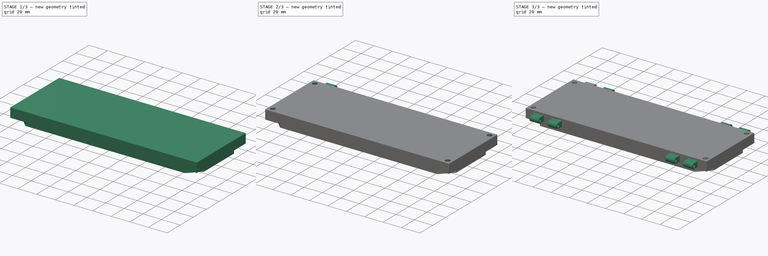
[diagram: build sequence overview — one tinted view per stage of 3, left to right]
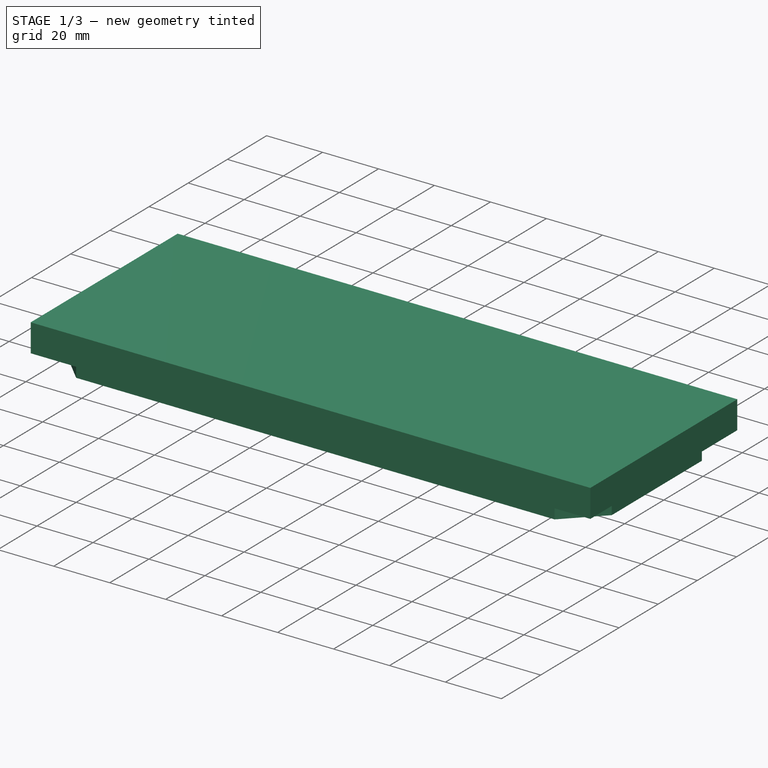
[diagram: stage 1 of 3 — iso view after this stage's code; geometry added in this stage tinted green]
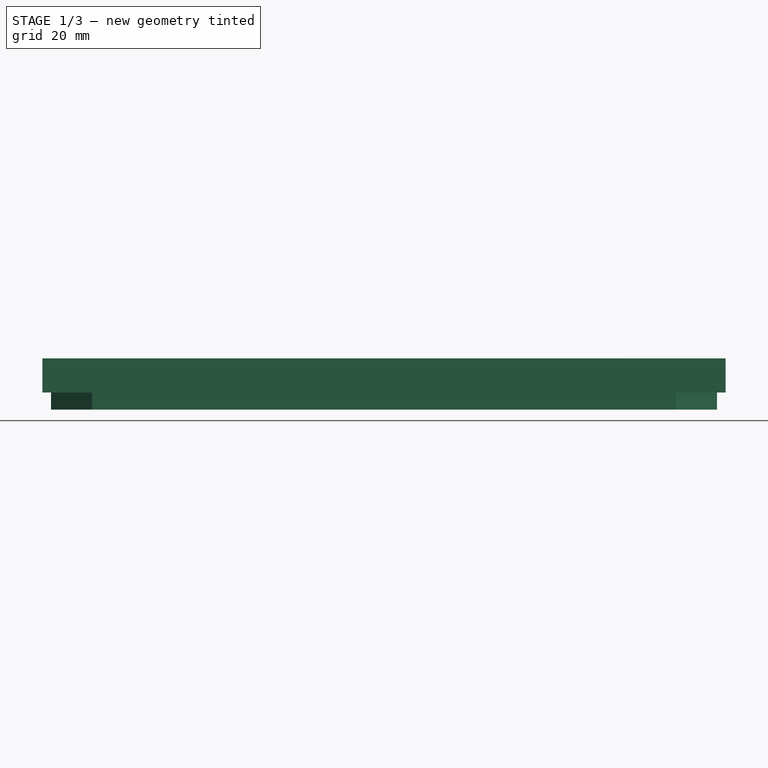
[diagram: stage 1 of 3 — front view after this stage's code; geometry added in this stage tinted green]
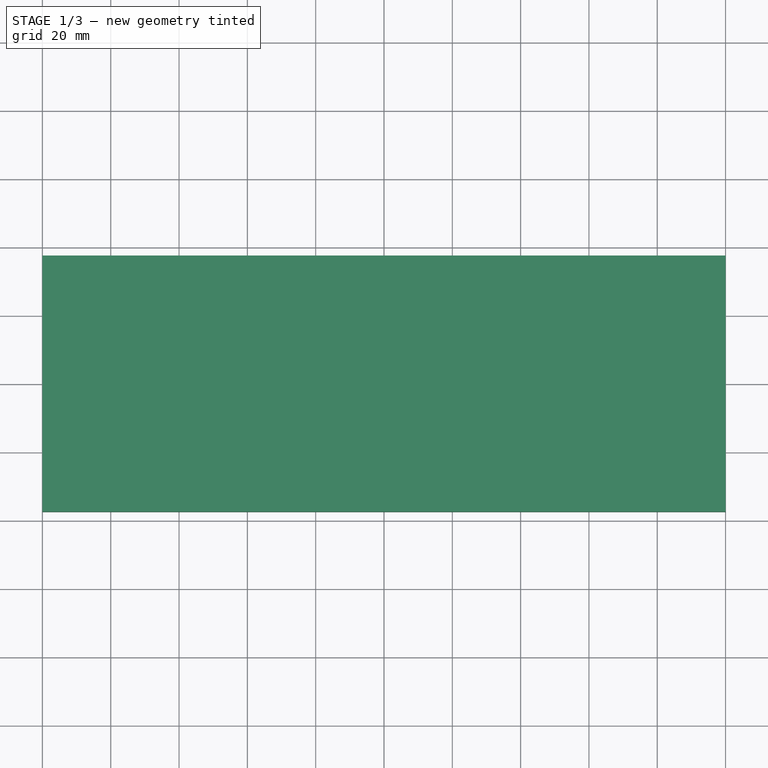
[diagram: stage 1 of 3 — top view after this stage's code; geometry added in this stage tinted green]
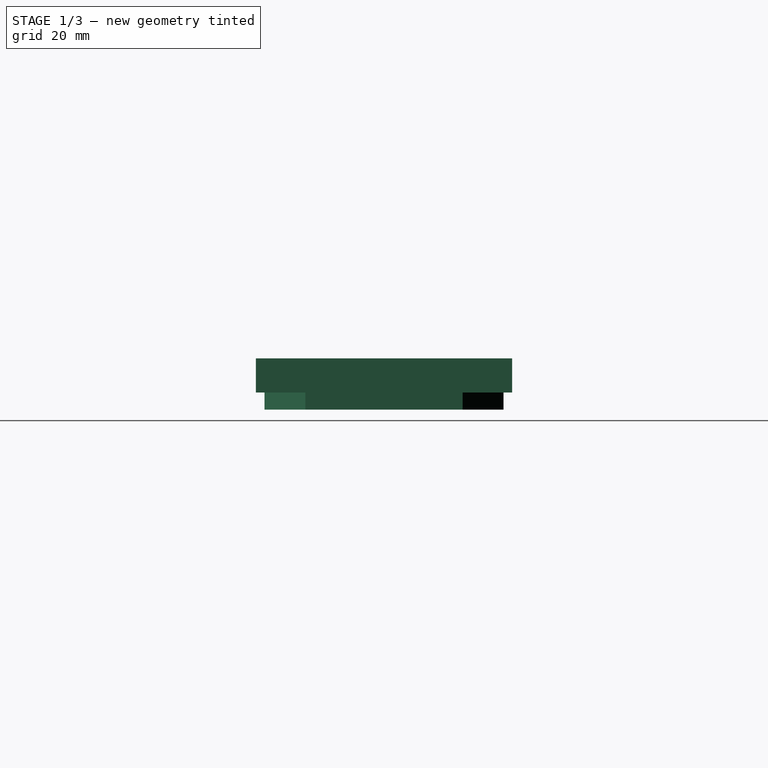
[diagram: stage 1 of 3 — right view after this stage's code; geometry added in this stage tinted green]
FCSTD DOCUMENT  (FreeCAD 1.0R39109 (Git))
Label: gahaeuse-oben
License: All rights reserved
LicenseURL: http://en.wikipedia.org/wiki/All_rights_reserved
objects: Sketcher::SketchObject×5, PartDesign::Mirrored×5, PartDesign::Plane×4, PartDesign::Pad×3, PartDesign::Pocket×2, PartDesign::MultiTransform×2, PartDesign::Body×1
note: 44 computed .brp shape members not serialized (recipe doc carries the construction recipe); baked Part::Feature solids carry a one-line shape summary decoded from their .brp

FEATURE [PartDesign::Plane] DatumPlane
  AttachmentSupport = -> [XY_Plane]
  Length = 227.123
  MapMode = 5
  ResizeMode = 0
  Width = 119.079
FEATURE [Sketcher::SketchObject] Sketch
  ArcFitTolerance = 0
  AttachmentSupport = -> [DatumPlane]
  FullyConstrained = true
  MakeInternals = false
  MapMode = 5
  sketch-geometry (4):
    g0: LineSegment StartX=-100 StartY=-37.5 StartZ=0 EndX=100 EndY=-37.5 EndZ=0
    g1: LineSegment StartX=100 StartY=-37.5 StartZ=0 EndX=100 EndY=37.5 EndZ=0
    g2: LineSegment StartX=100 StartY=37.5 StartZ=0 EndX=-100 EndY=37.5 EndZ=0
    g3: LineSegment StartX=-100 StartY=37.5 StartZ=0 EndX=-100 EndY=-37.5 EndZ=0
  constraints (10):
    c: Coincident(g0,g1)
    c: Coincident(g1,g2)
    c: Coincident(g2,g3)
    c: Coincident(g3,g0)
    c: Horizontal(g0)
    c: Vertical(g3)
    c: Symmetric(g2,g1,g-2)
    c: Symmetric(g1,g0,g-1)
    c: DistanceX(g2,g2) = 200
    c: DistanceY(g1,g1) = 75
FEATURE [PartDesign::Pad] Pad
  Direction = (0,0,1)
  Length = 10
  Length2 = 100
  Profile = -> Sketch
  Suppressed = false
  Type = 0
FEATURE [Sketcher::SketchObject] Sketch001
  ArcFitTolerance = 0
  AttachmentSupport = -> [DatumPlane]
  FullyConstrained = true
  MakeInternals = false
  MapMode = 5
  sketch-geometry (8):
    g0: LineSegment StartX=-97.5 StartY=-23 StartZ=0 EndX=-97.5 EndY=23 EndZ=0
    g1: LineSegment StartX=-97.5 StartY=23 StartZ=0 EndX=-85.5 EndY=35 EndZ=0
    g2: LineSegment StartX=-85.5 StartY=35 StartZ=0 EndX=85.5 EndY=35 EndZ=0
    g3: LineSegment StartX=85.5 StartY=35 StartZ=0 EndX=97.5 EndY=23 EndZ=0
    g4: LineSegment StartX=97.5 StartY=23 StartZ=0 EndX=97.5 EndY=-23 EndZ=0
    g5: LineSegment StartX=97.5 StartY=-23 StartZ=0 EndX=85.5 EndY=-35 EndZ=0
    g6: LineSegment StartX=85.5 StartY=-35 StartZ=0 EndX=-85.5 EndY=-35 EndZ=0
    g7: LineSegment StartX=-85.5 StartY=-35 StartZ=0 EndX=-97.5 EndY=-23 EndZ=0
  constraints (19):
    c: Coincident(g0,g1)
    c: Coincident(g1,g2)
    c: Coincident(g2,g3)
    c: Coincident(g3,g4)
    c: Coincident(g4,g5)
    c: Coincident(g5,g6)
    c: Coincident(g6,g7)
    c: Coincident(g7,g0)
    c: Symmetric(g1,g2,g-2)
    c: Symmetric(g2,g5,g-1)
    c: DistanceX(g0,g3) = 195
    c: DistanceY(g5,g2) = 70
    c: DistanceX(g2,g3) = 12
    c: DistanceX(g0,g1) = 12
    c: DistanceY(g0,g1) = 12
    c: DistanceY(g3,g2) = 12
    c: Symmetric(g1,g6,g-1)
    c: Symmetric(g0,g0,g-1)
    c: Symmetric(g3,g4,g-1)
FEATURE [PartDesign::Pad] Pad001
  BaseFeature = -> Pad
  Direction = (0,0,1)
  Length = 5
  Length2 = 100
  Profile = -> Sketch001
  Reversed = true
  Suppressed = false
  Type = 0
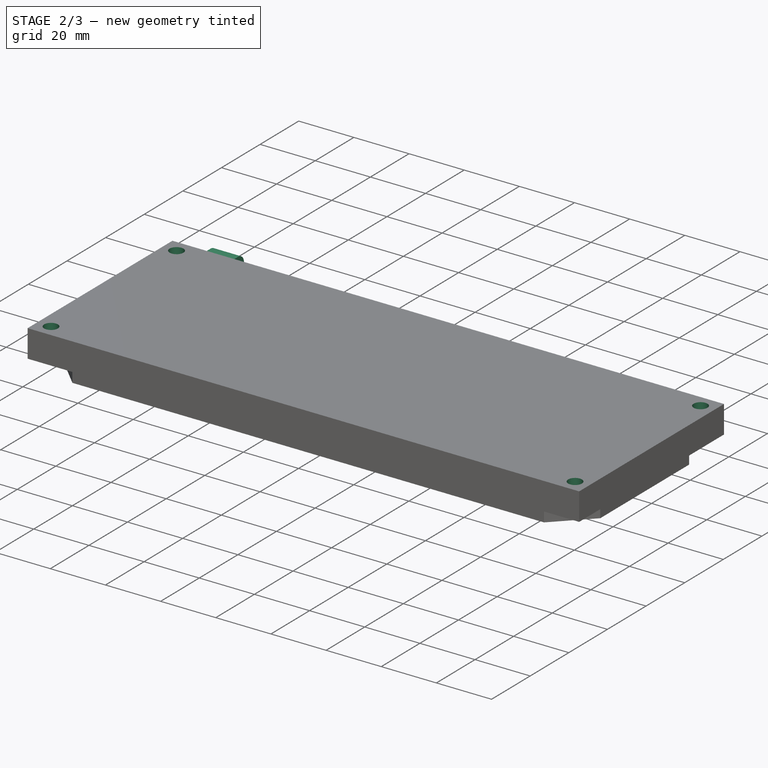
[diagram: stage 2 of 3 — iso view after this stage's code; geometry added in this stage tinted green]
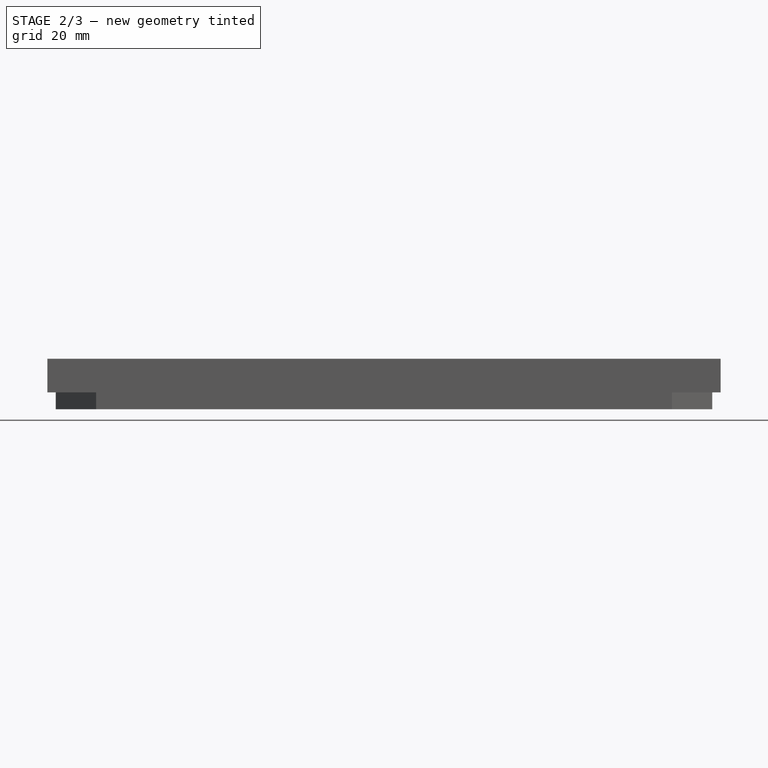
[diagram: stage 2 of 3 — front view after this stage's code; geometry added in this stage tinted green]
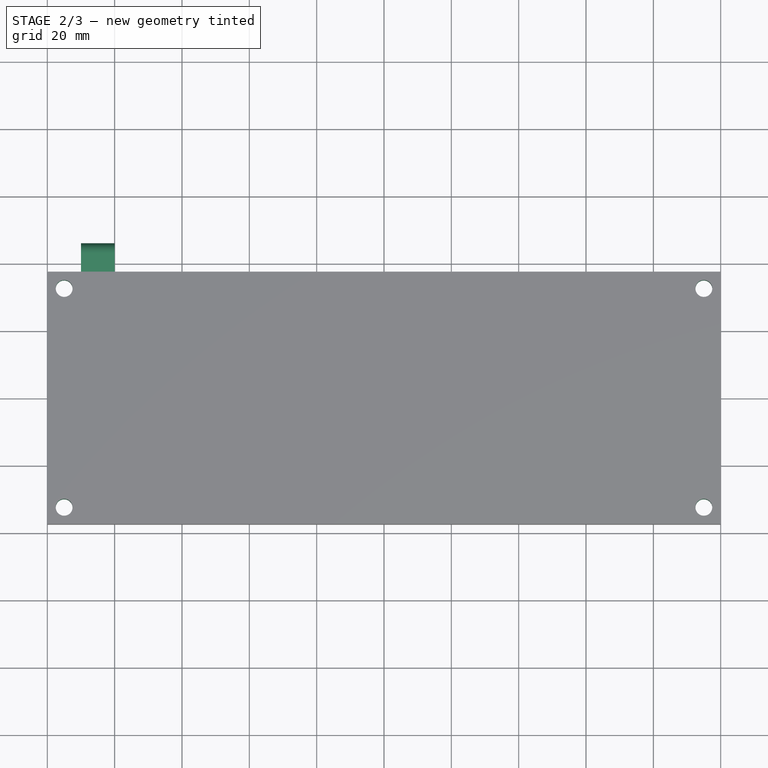
[diagram: stage 2 of 3 — top view after this stage's code; geometry added in this stage tinted green]
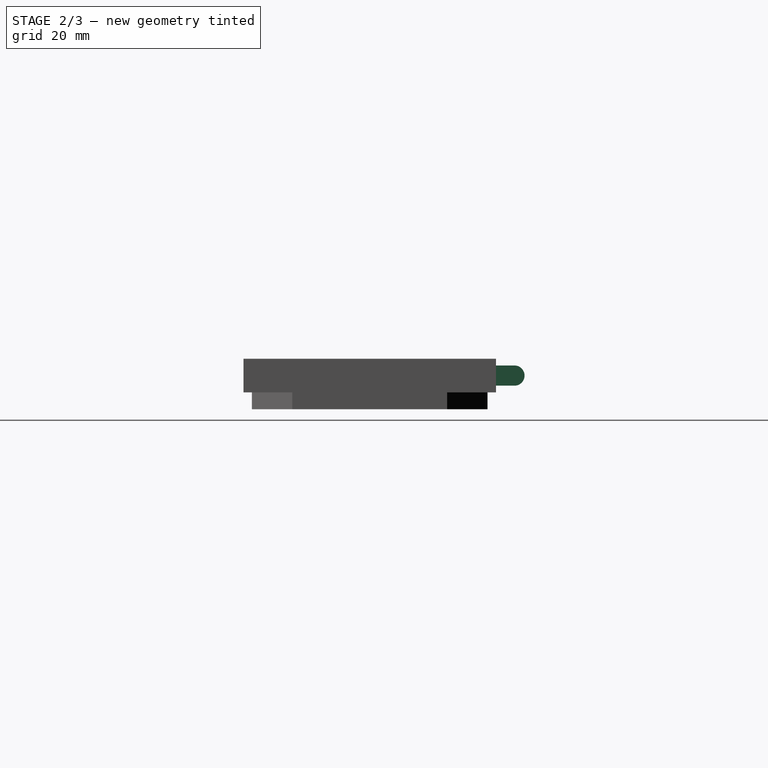
[diagram: stage 2 of 3 — right view after this stage's code; geometry added in this stage tinted green]
FEATURE [PartDesign::Plane] DatumPlane001
  AttachmentSupport = -> [XY_Plane]
  Length = 227.123
  MapMode = 5
  ResizeMode = 0
  Width = 119.079
FEATURE [Sketcher::SketchObject] Sketch002
  ArcFitTolerance = 0
  AttachmentSupport = -> [DatumPlane]
  FullyConstrained = true
  MakeInternals = false
  MapMode = 5
  sketch-geometry (1):
    g0: Circle CenterX=-95 CenterY=32.5 CenterZ=0 NormalX=0 NormalY=0 NormalZ=1 AngleXU=0 Radius=2.5
  constraints (3):
    c: DistanceY(g-1,g0) = 32.5
    c: DistanceX(g0,g-1) = 95
    c: Radius(g0) = 2.5
FEATURE [PartDesign::Pocket] Pocket
  BaseFeature = -> Pad001
  Direction = (0,0,-1)
  Length = 5
  Length2 = 100
  Profile = -> Sketch002
  Reversed = true
  Suppressed = false
  Type = 1
FEATURE [PartDesign::Mirrored] Mirrored
  MirrorPlane = -> YZ_Plane
  Suppressed = false
  TransformMode = 0
FEATURE [PartDesign::Mirrored] Mirrored001
  MirrorPlane = -> XZ_Plane
  Suppressed = false
  TransformMode = 0
FEATURE [PartDesign::MultiTransform] MultiTransform
  BaseFeature = -> Pocket
  Originals = -> [Pocket]
  Suppressed = false
  TransformMode = 0
  Transformations = -> [Mirrored,Mirrored001]
FEATURE [PartDesign::Plane] DatumPlane002
  AttachmentOffset = pos=(0,0,-75) rot=(0,0,1;0rad)
  AttachmentSupport = -> [YZ_Plane]
  Length = 105.518
  MapMode = 5
  Placement = pos=(-75,0,0) rot=(0.57735,0.57735,0.57735;2.0944rad)
  ResizeMode = 0
  Width = 63.5614
FEATURE [PartDesign::Plane] DatumPlane003
  AttachmentOffset = pos=(0,0,-80) rot=(0,0,1;0rad)
  AttachmentSupport = -> [YZ_Plane]
  Length = 105.518
  MapMode = 5
  Placement = pos=(-80,0,0) rot=(0.57735,0.57735,0.57735;2.0944rad)
  ResizeMode = 0
  Width = 63.5614
FEATURE [Sketcher::SketchObject] Sketch003
  ArcFitTolerance = 0
  AttachmentSupport = -> [DatumPlane003]
  FullyConstrained = true
  MakeInternals = false
  MapMode = 5
  Placement = pos=(-80,0,0) rot=(0.57735,0.57735,0.57735;2.0944rad)
  sketch-geometry (4):
    g0: LineSegment StartX=43 StartY=2 StartZ=0 EndX=37.5 EndY=2 EndZ=0
    g1: LineSegment StartX=37.5 StartY=2 StartZ=0 EndX=37.5 EndY=8 EndZ=0
    g2: LineSegment StartX=37.5 StartY=8 StartZ=0 EndX=43 EndY=8 EndZ=0
    g3: ArcOfCircle CenterX=43 CenterY=5 CenterZ=0 NormalX=0 NormalY=0 NormalZ=1 AngleXU=0 Radius=3 StartAngle=4.71239 EndAngle=7.85398
  constraints (11):
    c: Horizontal(g0)
    c: Coincident(g0,g1)
    c: Vertical(g1)
    c: Coincident(g1,g2)
    c: Horizontal(g2)
    c: Tangent(g3,g2) = 1.5708
    c: Tangent(g3,g0) = 1.5708
    c: Radius(g3) = 3
    c: DistanceY(g-1,g3) = 5
    c: DistanceX(g-1,g3) = 43
    c: DistanceX(g-1,g1) = 37.5
FEATURE [PartDesign::Pad] Pad002
  BaseFeature = -> MultiTransform
  Direction = (1,0,0)
  Length = 10
  Length2 = 100
  Profile = -> Sketch003
  Reversed = true
  Suppressed = false
  Type = 0
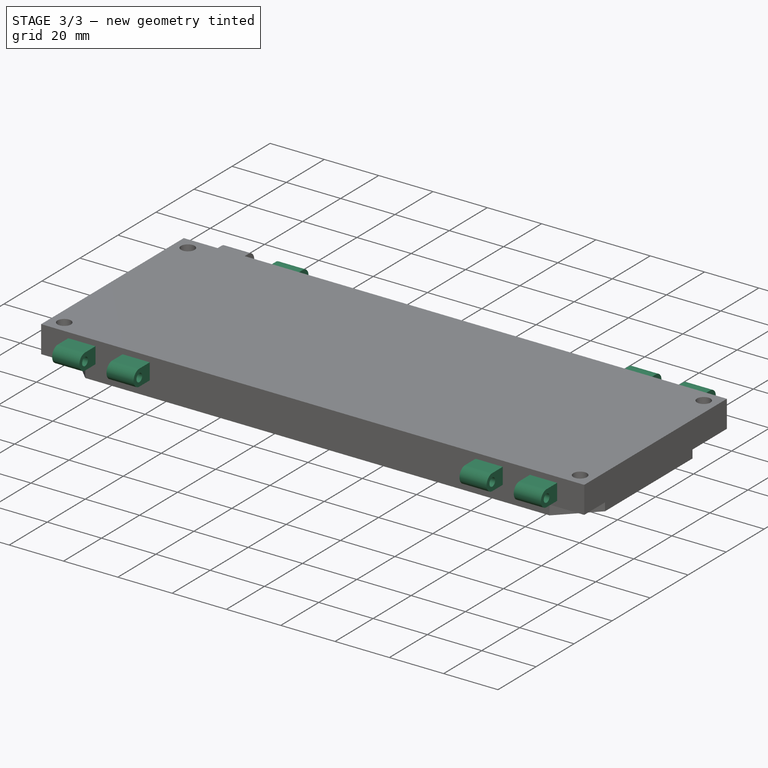
[diagram: stage 3 of 3 — iso view after this stage's code; geometry added in this stage tinted green]
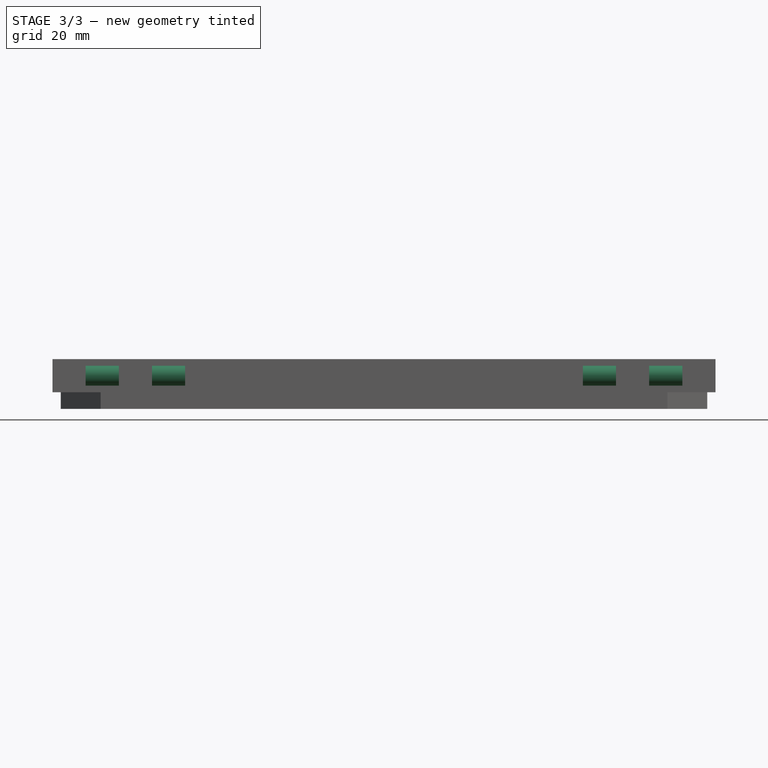
[diagram: stage 3 of 3 — front view after this stage's code; geometry added in this stage tinted green]
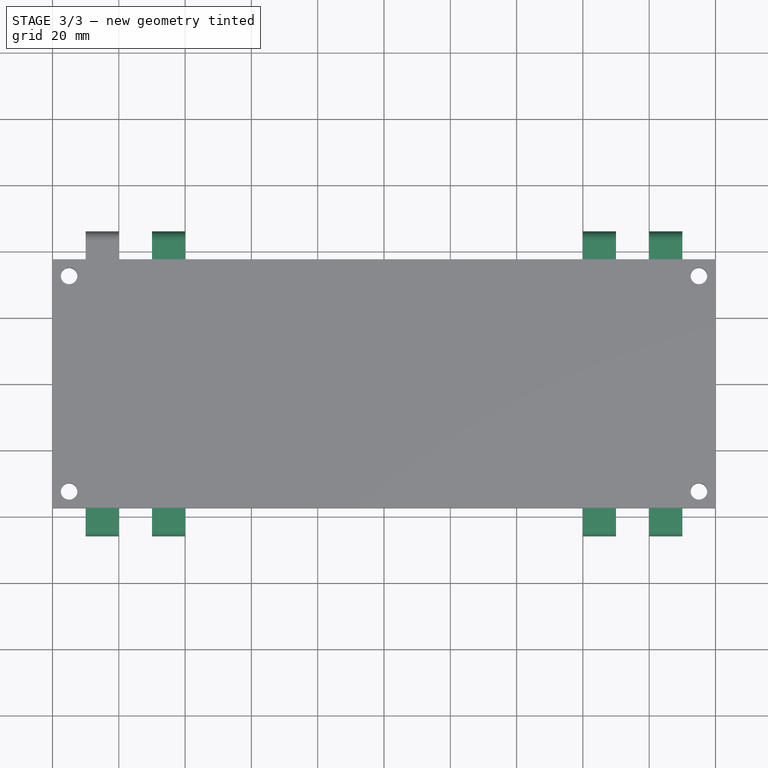
[diagram: stage 3 of 3 — top view after this stage's code; geometry added in this stage tinted green]
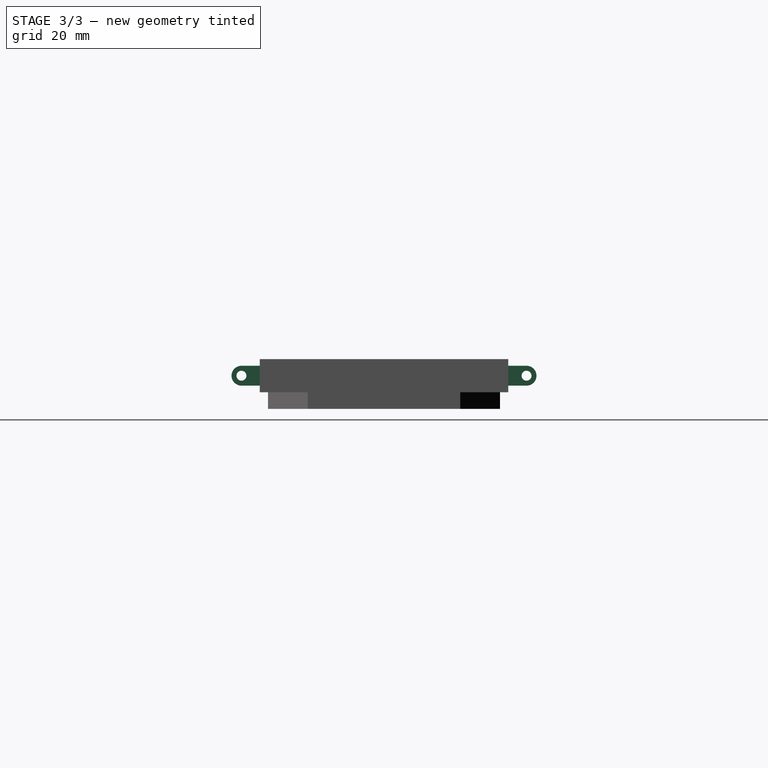
[diagram: stage 3 of 3 — right view after this stage's code; geometry added in this stage tinted green]
FEATURE [Sketcher::SketchObject] Sketch004
  ArcFitTolerance = 0
  AttachmentSupport = -> [DatumPlane003]
  FullyConstrained = true
  MakeInternals = false
  MapMode = 5
  Placement = pos=(-80,0,0) rot=(0.57735,0.57735,0.57735;2.0944rad)
  sketch-geometry (1):
    g0: Circle CenterX=43 CenterY=5 CenterZ=0 NormalX=0 NormalY=0 NormalZ=1 AngleXU=0 Radius=1.5
  constraints (3):
    c: Radius(g0) = 1.5
    c: DistanceY(g-1,g0) = 5
    c: DistanceX(g-1,g0) = 43
FEATURE [PartDesign::Pocket] Pocket001
  BaseFeature = -> Pad002
  Direction = (-1,0,0)
  Length = 5
  Length2 = 100
  Profile = -> Sketch004
  Suppressed = false
  Type = 1
FEATURE [PartDesign::Mirrored] Mirrored002
  MirrorPlane = -> DatumPlane002
  Suppressed = false
  TransformMode = 0
FEATURE [PartDesign::Mirrored] Mirrored003
  MirrorPlane = -> YZ_Plane
  Suppressed = false
  TransformMode = 0
FEATURE [PartDesign::Mirrored] Mirrored004
  MirrorPlane = -> XZ_Plane
  Suppressed = false
  TransformMode = 0
FEATURE [PartDesign::MultiTransform] MultiTransform001
  BaseFeature = -> Pocket001
  Originals = -> [Pad002,Pocket001]
  Suppressed = false
  TransformMode = 0
  Transformations = -> [Mirrored002,Mirrored003,Mirrored004]
FEATURE [PartDesign::Body] Body
  AllowCompound = false
  Group = -> [DatumPlane,Sketch,Pad,Sketch001,Pad001,DatumPlane001,Sketch002,Pocket,MultiTransform,Mirrored,Mirrored001,DatumPlane002,DatumPlane003,Sketch003,Pad002,Sketch004,Pocket001,MultiTransform001,Mirrored002,Mirrored003,Mirrored004]
  Origin = -> Origin
  Tip = -> MultiTransform001
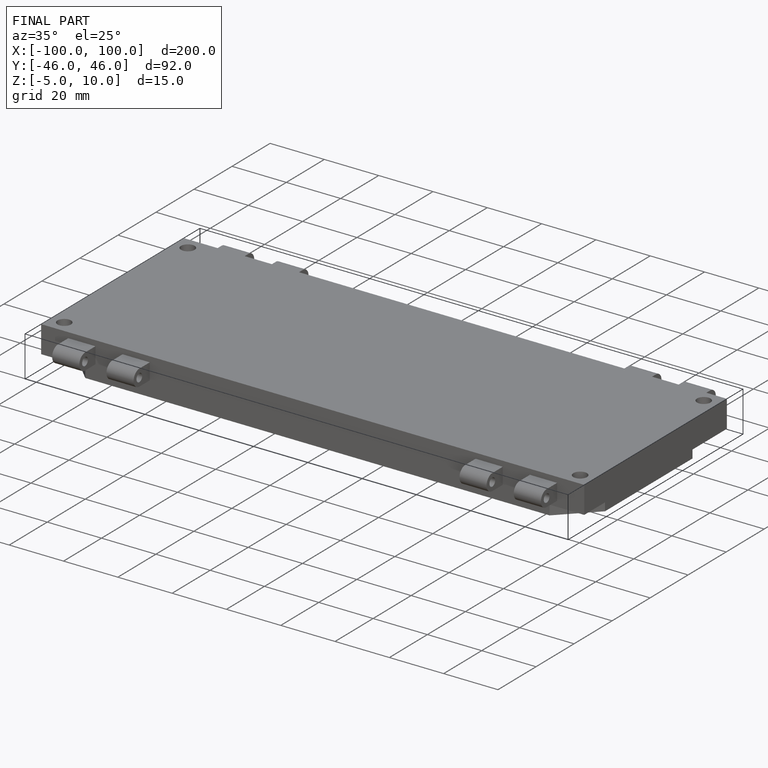
[diagram: finished part — iso view with bounding-box wireframe]
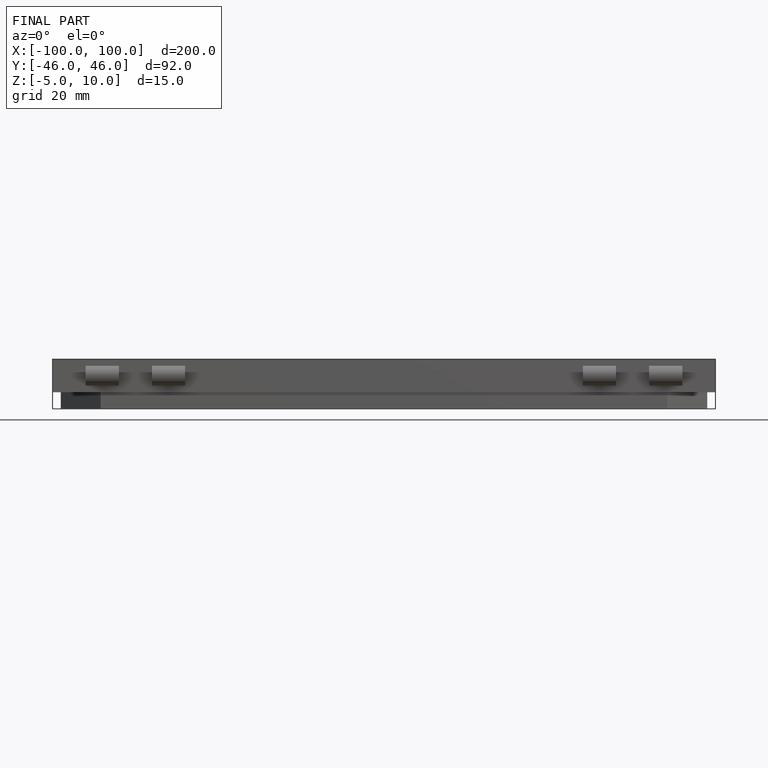
[diagram: finished part — front view with bounding-box wireframe]
